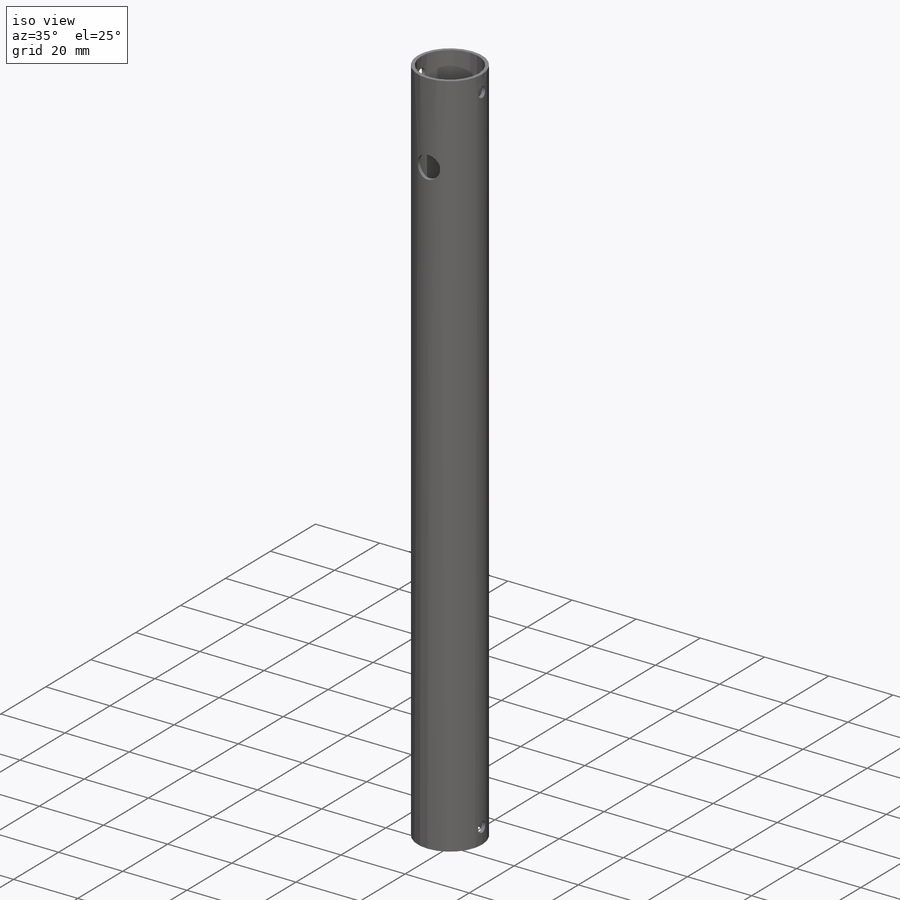
[diagram: iso view]
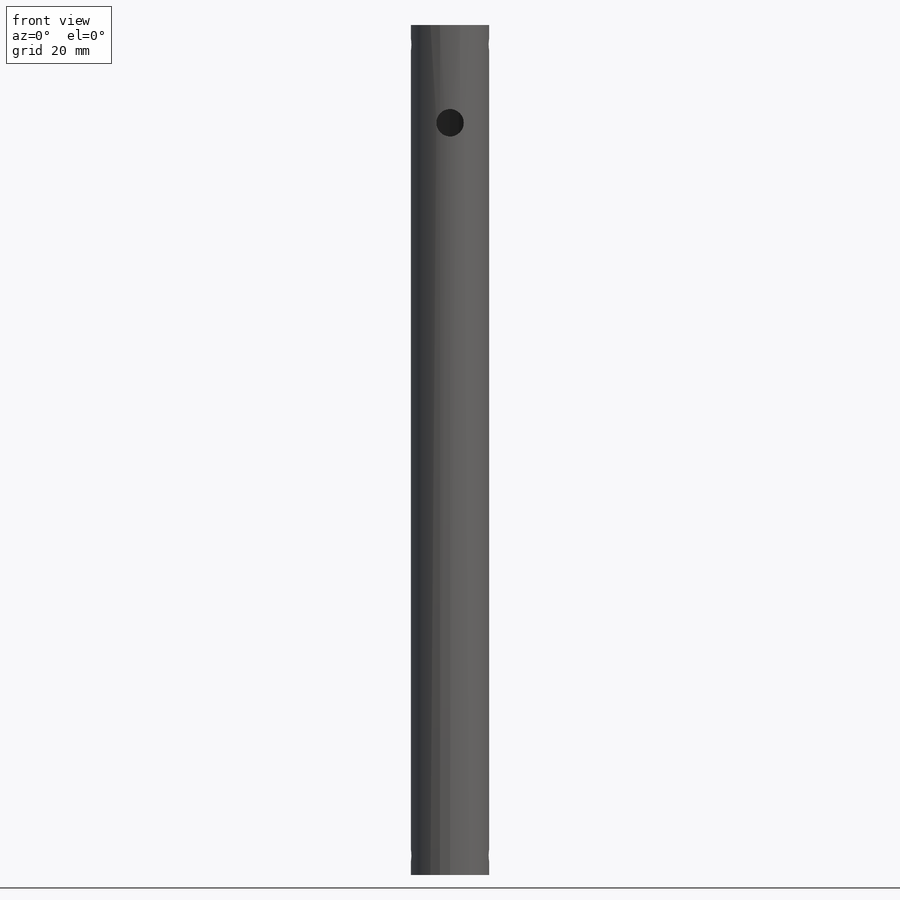
[diagram: front view]
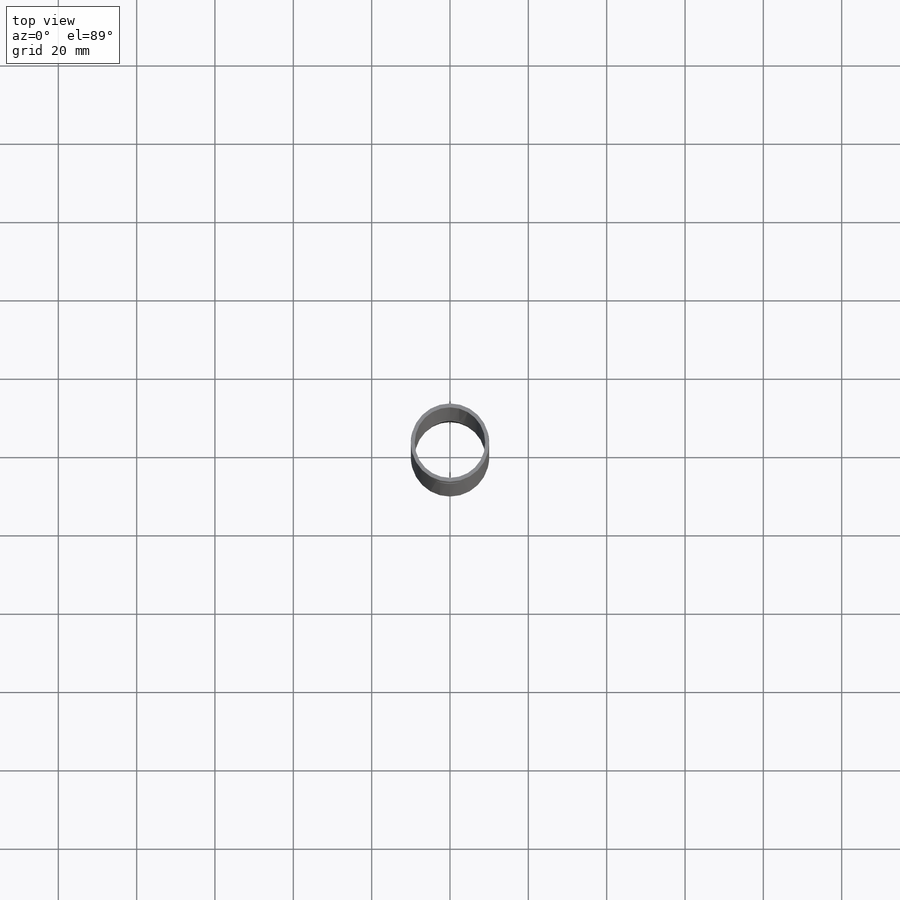
[diagram: top view]
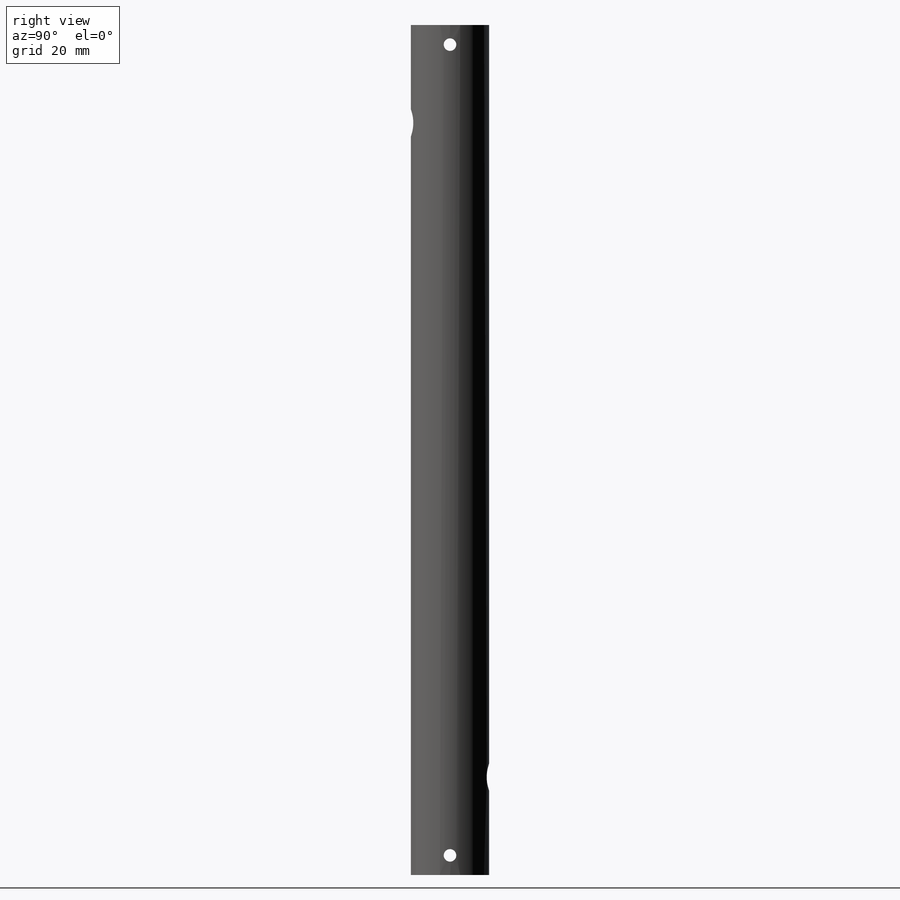
[diagram: right view]
SOLIDWORKS PART (.sldprt)
format: sldprt  version: not decoded by parser v0  size: 319,488 bytes
history: native  units: mm
features: sketch x5, plane x4, cut_extrude x2, material x1, extrude x1, hole x1, mirror x1 (+13 scaffold rows collapsed)
feature tree (28):
  scaffold x13  (default folders/planes/origin — collapsed)
  material  "Toray T700"
  sketch  "Sketch1"  dims[c1.D1=20.0mm c1.D2=18.0mm c2.D1=4.0mm c2.D2=2.5mm]
  extrude  "Boss-Extrude1"  Depth=217mm
  plane  "Plane1"
  hole  "M3 Clearance Hole1"  Diameter=3.2mm Depth=20mm
  sketch  "Sketch3"  dims[D1=5.0mm]
  sketch  "Sketch2"  dims[hole-wizard template sketch: 60 standard entries collapsed; hole parameters kept: c18.Thru Hole Depth=20.0mm]
  plane  "Plane2"
  mirror  "Mirror1"
  plane  "Plane3"
  sketch  "Sketch4"  dims[D1=7.0mm D2=25.0mm]
  cut_extrude  "Cut-Extrude1"  [1 undecoded]
  plane  "Plane4"
  sketch  "Sketch5"  dims[D2=7.0mm D1=25.0mm]
  cut_extrude  "Cut-Extrude2"  [1 undecoded]
decode coverage: 7 of 10 modeling features carry decoded parameters
note: ~ marks probable driven/reference dimensions
note: 2 parameter values undecoded
note: suppression state not decoded; provenance and decode notes live in map.json
